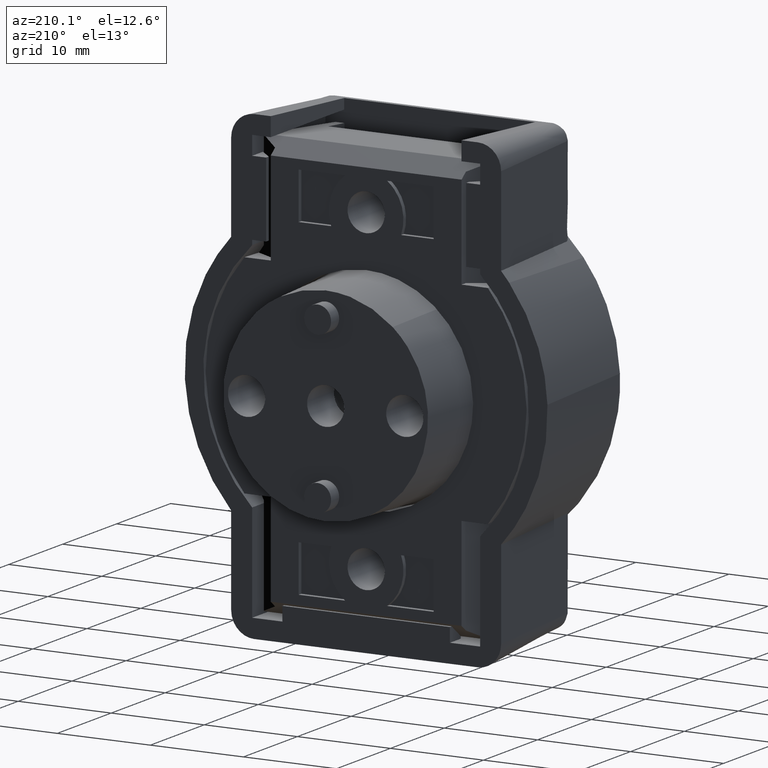
[diagram: clean part render]
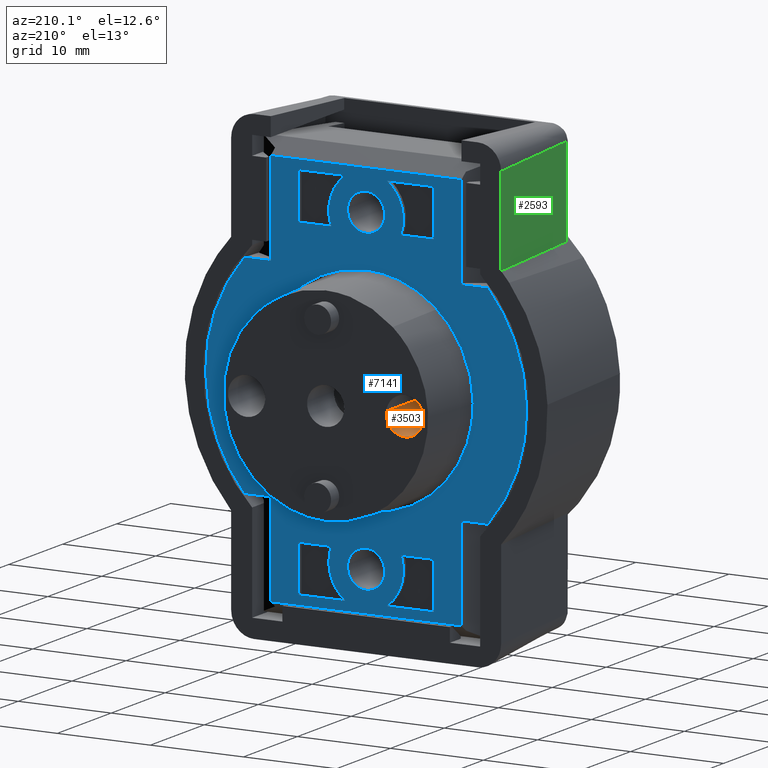
[diagram: same view with three faces highlighted in distinct colors, each labeled with its STEP entity id]
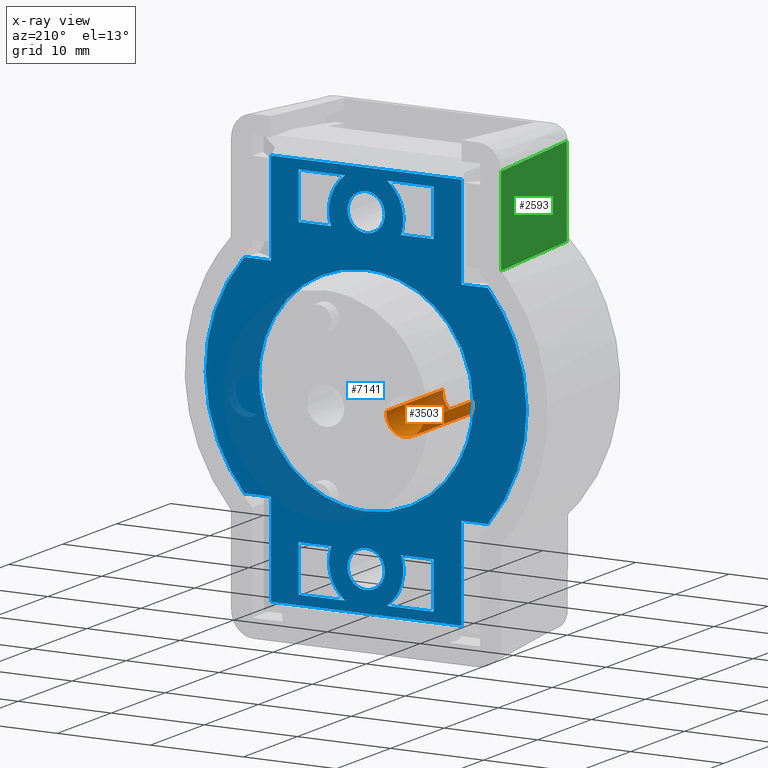
[diagram: x-ray of the same camera — body ghosted, the three highlighted faces saturated]
A machine part, auxiliary view with three faces highlighted in distinct colors.
The next image is the same camera in x-ray (body ghosted, the three faces saturated) — at least one of them is partly hidden behind the body in this view.
Their STEP definitions:

[orange] entity #3503 — the highlighted face is a freeform B-spline surface patch.
#3401=CARTESIAN_POINT('',(3.262500000000001,6.513980947272669,-0.236068469313518));
#3402=CARTESIAN_POINT('',(3.262500000000001,6.507224769102789,-0.179229457275957));
#3403=CARTESIAN_POINT('',(3.262500000000001,6.503730403156267,-0.122097079069715));
#3404=CARTESIAN_POINT('',(3.262500000000001,6.381633324086554,1.874172517774017));
#3405=CARTESIAN_POINT('',(3.262500000000001,8.377902920930286,1.996269596843732));
#3406=CARTESIAN_POINT('',(3.262500000000001,10.374172517774019,2.118366675913446));
#3407=CARTESIAN_POINT('',(3.262500000000001,10.496269596843730,0.122097079069712));
#3408=CARTESIAN_POINT('',(-7.769062500000002,6.513980947272669,-0.236068469313518));
#3409=CARTESIAN_POINT('',(-7.769062500000002,6.507224769102789,-0.179229457275957));
#3410=CARTESIAN_POINT('',(-7.769062500000001,6.503730403156267,-0.122097079069715));
#3411=CARTESIAN_POINT('',(-7.769062500000001,6.381633324086554,1.874172517774017));
#3412=CARTESIAN_POINT('',(-7.769062500000001,8.377902920930286,1.996269596843732));
#3413=CARTESIAN_POINT('',(-7.769062500000001,10.374172517774019,2.118366675913446));
#3414=CARTESIAN_POINT('',(-7.769062500000001,10.496269596843730,0.122097079069712));
#3422=(BOUNDED_SURFACE()B_SPLINE_SURFACE(2,1,((#3401,#3408),(#3402,#3409),(#3403,#3410),(#3404,#3411),(#3405,#3412),(#3406,#3413),(#3407,#3414)),.UNSPECIFIED.,.F.,.F.,.U.)B_SPLINE_SURFACE_WITH_KNOTS((3,2,2,3),(2,2),(0.0,0.132548339959391,3.446256838944152,6.759965337928914),(0.0,11.031562500000000),.UNSPECIFIED.)GEOMETRIC_REPRESENTATION_ITEM()RATIONAL_B_SPLINE_SURFACE(((0.977505800795127,0.977505800795127),(0.988284271247462,0.988284271247462),(1.0,1.0),(0.707106781186548,0.707106781186548),(1.0,1.0),(0.707106781186548,0.707106781186548),(1.0,1.0)))REPRESENTATION_ITEM('')SURFACE());
#3423=CARTESIAN_POINT('',(3.0,6.513980947274620,-0.236068469329939));
#3424=VERTEX_POINT('',#3423);
#3425=CARTESIAN_POINT('',(3.0,8.500000000000000,1.999999999999998));
#3426=VERTEX_POINT('',#3425);
#3427=CARTESIAN_POINT('',(3.0,6.513980947274621,-0.236068469329939));
#3428=CARTESIAN_POINT('',(3.0,6.500000000000001,-0.118448239320416));
#3429=CARTESIAN_POINT('',(3.0,6.500000000000001,-1.561373E-015));
#3430=CARTESIAN_POINT('',(3.0,6.500000000000003,1.999999999999998));
#3431=CARTESIAN_POINT('',(3.0,8.500000000000000,1.999999999999998));
#3439=(BOUNDED_CURVE()B_SPLINE_CURVE(2,(#3427,#3428,#3429,#3430,#3431),.UNSPECIFIED.,.F.,.U.)B_SPLINE_CURVE_WITH_KNOTS((3,2,3),(0.229562473512850,0.250000000000000,0.500000000000000),.UNSPECIFIED.)CURVE()GEOMETRIC_REPRESENTATION_ITEM()RATIONAL_B_SPLINE_CURVE((0.956026754182408,0.976055948330373,1.0,0.707106781186548,1.0))REPRESENTATION_ITEM(''));
#3440=EDGE_CURVE('',#3424,#3426,#3439,.T.);
#3441=ORIENTED_EDGE('',*,*,#3440,.F.);
#3442=CARTESIAN_POINT('',(-7.500000000000001,6.513980947274620,-0.236068469329939));
#3443=VERTEX_POINT('',#3442);
#3444=CARTESIAN_POINT('',(3.0,6.513980947274620,-0.236068469329939));
#3445=CARTESIAN_POINT('',(-7.500000000000001,6.513980947274620,-0.236068469329939));
#3446=QUASI_UNIFORM_CURVE('',1,(#3444,#3445),.UNSPECIFIED.,.F.,.U.);
#3447=EDGE_CURVE('',#3424,#3443,#3446,.T.);
#3448=ORIENTED_EDGE('',*,*,#3447,.T.);
#3449=CARTESIAN_POINT('',(-7.500000000000000,8.500000000000000,1.999999999999998));
#3450=VERTEX_POINT('',#3449);
#3451=CARTESIAN_POINT('',(-7.500000000000002,6.513980947274621,-0.236068469329939));
#3452=CARTESIAN_POINT('',(-7.500000000000000,6.500000000000001,-0.118448239320416));
#3453=CARTESIAN_POINT('',(-7.500000000000000,6.500000000000001,-1.561373E-015));
#3454=CARTESIAN_POINT('',(-7.500000000000000,6.500000000000003,1.999999999999998));
#3455=CARTESIAN_POINT('',(-7.500000000000000,8.500000000000000,1.999999999999998));
#3463=(BOUNDED_CURVE()B_SPLINE_CURVE(2,(#3451,#3452,#3453,#3454,#3455),.UNSPECIFIED.,.F.,.U.)B_SPLINE_CURVE_WITH_KNOTS((3,2,3),(0.229562473512850,0.250000000000000,0.500000000000000),.UNSPECIFIED.)CURVE()GEOMETRIC_REPRESENTATION_ITEM()RATIONAL_B_SPLINE_CURVE((0.956026754182408,0.976055948330373,1.0,0.707106781186548,1.0))REPRESENTATION_ITEM(''));
#3464=EDGE_CURVE('',#3443,#3450,#3463,.T.);
#3465=ORIENTED_EDGE('',*,*,#3464,.T.);
#3466=CARTESIAN_POINT('',(-7.500000000000000,10.496269596839889,0.122097079132595));
#3467=VERTEX_POINT('',#3466);
#3468=CARTESIAN_POINT('',(-7.500000000000000,8.500000000000000,1.999999999999998));
#3469=CARTESIAN_POINT('',(-7.499999999999999,10.381412133692640,1.999999999999998));
#3470=CARTESIAN_POINT('',(-7.500000000000000,10.496269596839886,0.122097079132595));
#3478=(BOUNDED_CURVE()B_SPLINE_CURVE(2,(#3468,#3469,#3470),.UNSPECIFIED.,.F.,.U.)B_SPLINE_CURVE_WITH_KNOTS((3,3),(0.500000000000000,0.739332962231098),.UNSPECIFIED.)CURVE()GEOMETRIC_REPRESENTATION_ITEM()RATIONAL_B_SPLINE_CURVE((1.0,0.719603993295901,0.976072041649905))REPRESENTATION_ITEM(''));
#3479=EDGE_CURVE('',#3450,#3467,#3478,.T.);
#3480=ORIENTED_EDGE('',*,*,#3479,.T.);
#3481=CARTESIAN_POINT('',(2.999999999999999,10.496269596839889,0.122097079132595));
#3482=VERTEX_POINT('',#3481);
#3483=CARTESIAN_POINT('',(2.999999999999999,10.496269596839889,0.122097079132595));
#3484=CARTESIAN_POINT('',(-7.500000000000000,10.496269596839889,0.122097079132595));
#3485=QUASI_UNIFORM_CURVE('',1,(#3483,#3484),.UNSPECIFIED.,.F.,.U.);
#3486=EDGE_CURVE('',#3482,#3467,#3485,.T.);
#3487=ORIENTED_EDGE('',*,*,#3486,.F.);
#3488=CARTESIAN_POINT('',(3.0,8.500000000000000,1.999999999999998));
#3489=CARTESIAN_POINT('',(3.000000000000001,10.381412133692640,1.999999999999998));
#3490=CARTESIAN_POINT('',(2.999999999999999,10.496269596839886,0.122097079132595));
#3498=(BOUNDED_CURVE()B_SPLINE_CURVE(2,(#3488,#3489,#3490),.UNSPECIFIED.,.F.,.U.)B_SPLINE_CURVE_WITH_KNOTS((3,3),(0.500000000000000,0.739332962231098),.UNSPECIFIED.)CURVE()GEOMETRIC_REPRESENTATION_ITEM()RATIONAL_B_SPLINE_CURVE((1.0,0.719603993295901,0.976072041649905))REPRESENTATION_ITEM(''));
#3499=EDGE_CURVE('',#3426,#3482,#3498,.T.);
#3500=ORIENTED_EDGE('',*,*,#3499,.F.);
#3501=EDGE_LOOP('',(#3441,#3448,#3465,#3480,#3487,#3500));
#3502=FACE_OUTER_BOUND('',#3501,.T.);
#3503=ADVANCED_FACE('',(#3502),#3422,.F.);

[blue] entity #7141 — the highlighted face is a freeform B-spline surface patch.
#4733=CARTESIAN_POINT('',(-2.839428E-017,-1.986019052725381,16.763931530670060));
#4734=VERTEX_POINT('',#4733);
#4740=CARTESIAN_POINT('',(0.0,0.0,19.0));
#4741=VERTEX_POINT('',#4740);
#4742=CARTESIAN_POINT('',(-2.839428E-017,-1.986019052725381,16.763931530670064));
#4743=CARTESIAN_POINT('',(0.0,-2.000000000000000,16.881551760679589));
#4744=CARTESIAN_POINT('',(0.0,-2.0,17.0));
#4745=CARTESIAN_POINT('',(0.0,-2.000000000000000,19.000000000000011));
#4746=CARTESIAN_POINT('',(0.0,0.0,19.0));
#4754=(BOUNDED_CURVE()B_SPLINE_CURVE(2,(#4742,#4743,#4744,#4745,#4746),.UNSPECIFIED.,.F.,.U.)B_SPLINE_CURVE_WITH_KNOTS((3,2,3),(0.229562473512849,0.250000000000000,0.500000000000000),.UNSPECIFIED.)CURVE()GEOMETRIC_REPRESENTATION_ITEM()RATIONAL_B_SPLINE_CURVE((0.956026754182407,0.976055948330373,1.0,0.707106781186548,1.0))REPRESENTATION_ITEM(''));
#4755=EDGE_CURVE('',#4734,#4741,#4754,.T.);
#4757=CARTESIAN_POINT('',(-5.551115E-017,1.996269596839888,17.122097079132590));
#4758=VERTEX_POINT('',#4757);
#4759=CARTESIAN_POINT('',(0.0,0.0,19.0));
#4760=CARTESIAN_POINT('',(0.0,1.881412133692641,19.0));
#4761=CARTESIAN_POINT('',(-5.551115E-017,1.996269596839887,17.122097079132590));
#4769=(BOUNDED_CURVE()B_SPLINE_CURVE(2,(#4759,#4760,#4761),.UNSPECIFIED.,.F.,.U.)B_SPLINE_CURVE_WITH_KNOTS((3,3),(0.500000000000000,0.739332962231098),.UNSPECIFIED.)CURVE()GEOMETRIC_REPRESENTATION_ITEM()RATIONAL_B_SPLINE_CURVE((1.0,0.719603993295901,0.976072041649905))REPRESENTATION_ITEM(''));
#4770=EDGE_CURVE('',#4741,#4758,#4769,.T.);
#4844=CARTESIAN_POINT('',(0.0,0.0,15.0));
#4845=VERTEX_POINT('',#4844);
#4846=CARTESIAN_POINT('',(-5.551115E-017,1.996269596839887,17.122097079132590));
#4847=CARTESIAN_POINT('',(0.0,2.0,17.061105526660235));
#4848=CARTESIAN_POINT('',(0.0,2.0,17.0));
#4849=CARTESIAN_POINT('',(0.0,2.000000000000000,15.000000000000009));
#4850=CARTESIAN_POINT('',(0.0,0.0,15.0));
#4858=(BOUNDED_CURVE()B_SPLINE_CURVE(2,(#4846,#4847,#4848,#4849,#4850),.UNSPECIFIED.,.F.,.U.)B_SPLINE_CURVE_WITH_KNOTS((3,2,3),(0.739332962231098,0.750000000000000,1.0),.UNSPECIFIED.)CURVE()GEOMETRIC_REPRESENTATION_ITEM()RATIONAL_B_SPLINE_CURVE((0.976072041649905,0.987502787890646,1.0,0.707106781186548,1.0))REPRESENTATION_ITEM(''));
#4859=EDGE_CURVE('',#4758,#4845,#4858,.T.);
#4861=CARTESIAN_POINT('',(0.0,0.0,15.0));
#4862=CARTESIAN_POINT('',(0.0,-1.776349051873152,15.0));
#4863=CARTESIAN_POINT('',(-2.839428E-017,-1.986019052725381,16.763931530670064));
#4871=(BOUNDED_CURVE()B_SPLINE_CURVE(2,(#4861,#4862,#4863),.UNSPECIFIED.,.F.,.U.)B_SPLINE_CURVE_WITH_KNOTS((3,3),(0.0,0.229562473512849),.UNSPECIFIED.)CURVE()GEOMETRIC_REPRESENTATION_ITEM()RATIONAL_B_SPLINE_CURVE((1.0,0.731050832856175,0.956026754182407))REPRESENTATION_ITEM(''));
#4872=EDGE_CURVE('',#4845,#4734,#4871,.T.);
#4919=CARTESIAN_POINT('',(-2.839428E-017,-1.986019052725381,-17.236068469329940));
#4920=VERTEX_POINT('',#4919);
#4926=CARTESIAN_POINT('',(0.0,0.0,-15.0));
#4927=VERTEX_POINT('',#4926);
#4928=CARTESIAN_POINT('',(-2.839428E-017,-1.986019052725381,-17.236068469329940));
#4929=CARTESIAN_POINT('',(0.0,-2.000000000000000,-17.118448239320415));
#4930=CARTESIAN_POINT('',(0.0,-2.0,-17.0));
#4931=CARTESIAN_POINT('',(0.0,-2.000000000000000,-15.000000000000009));
#4932=CARTESIAN_POINT('',(0.0,0.0,-15.0));
#4940=(BOUNDED_CURVE()B_SPLINE_CURVE(2,(#4928,#4929,#4930,#4931,#4932),.UNSPECIFIED.,.F.,.U.)B_SPLINE_CURVE_WITH_KNOTS((3,2,3),(0.229562473512850,0.250000000000000,0.500000000000000),.UNSPECIFIED.)CURVE()GEOMETRIC_REPRESENTATION_ITEM()RATIONAL_B_SPLINE_CURVE((0.956026754182408,0.976055948330373,1.0,0.707106781186548,1.0))REPRESENTATION_ITEM(''));
#4941=EDGE_CURVE('',#4920,#4927,#4940,.T.);
#4943=CARTESIAN_POINT('',(-5.551115E-017,1.996269596839888,-16.877902920867410));
#4944=VERTEX_POINT('',#4943);
#4945=CARTESIAN_POINT('',(0.0,0.0,-15.0));
#4946=CARTESIAN_POINT('',(0.0,1.881412133692641,-15.000000000000007));
#4947=CARTESIAN_POINT('',(-5.551115E-017,1.996269596839887,-16.877902920867410));
#4955=(BOUNDED_CURVE()B_SPLINE_CURVE(2,(#4945,#4946,#4947),.UNSPECIFIED.,.F.,.U.)B_SPLINE_CURVE_WITH_KNOTS((3,3),(0.500000000000000,0.739332962231098),.UNSPECIFIED.)CURVE()GEOMETRIC_REPRESENTATION_ITEM()RATIONAL_B_SPLINE_CURVE((1.0,0.719603993295901,0.976072041649905))REPRESENTATION_ITEM(''));
#4956=EDGE_CURVE('',#4927,#4944,#4955,.T.);
#5030=CARTESIAN_POINT('',(0.0,0.0,-19.0));
#5031=VERTEX_POINT('',#5030);
#5032=CARTESIAN_POINT('',(-5.551115E-017,1.996269596839888,-16.877902920867410));
#5033=CARTESIAN_POINT('',(0.0,2.000000000000000,-16.938894473339769));
#5034=CARTESIAN_POINT('',(0.0,2.0,-17.0));
#5035=CARTESIAN_POINT('',(0.0,2.000000000000000,-19.000000000000011));
#5036=CARTESIAN_POINT('',(0.0,0.0,-19.0));
#5044=(BOUNDED_CURVE()B_SPLINE_CURVE(2,(#5032,#5033,#5034,#5035,#5036),.UNSPECIFIED.,.F.,.U.)B_SPLINE_CURVE_WITH_KNOTS((3,2,3),(0.739332962231098,0.750000000000000,1.0),.UNSPECIFIED.)CURVE()GEOMETRIC_REPRESENTATION_ITEM()RATIONAL_B_SPLINE_CURVE((0.976072041649904,0.987502787890646,1.0,0.707106781186548,1.0))REPRESENTATION_ITEM(''));
#5045=EDGE_CURVE('',#4944,#5031,#5044,.T.);
#5047=CARTESIAN_POINT('',(0.0,0.0,-19.0));
#5048=CARTESIAN_POINT('',(0.0,-1.776349051873156,-19.000000000000004));
#5049=CARTESIAN_POINT('',(-2.839428E-017,-1.986019052725381,-17.236068469329936));
#5057=(BOUNDED_CURVE()B_SPLINE_CURVE(2,(#5047,#5048,#5049),.UNSPECIFIED.,.F.,.U.)B_SPLINE_CURVE_WITH_KNOTS((3,3),(0.0,0.229562473512850),.UNSPECIFIED.)CURVE()GEOMETRIC_REPRESENTATION_ITEM()RATIONAL_B_SPLINE_CURVE((1.0,0.731050832856174,0.956026754182408))REPRESENTATION_ITEM(''));
#5058=EDGE_CURVE('',#5031,#4920,#5057,.T.);
#5343=CARTESIAN_POINT('',(9.426996E-017,-11.411061914072411,1.427468386057175));
#5344=VERTEX_POINT('',#5343);
#5350=CARTESIAN_POINT('',(0.0,0.0,11.500000000000000));
#5351=VERTEX_POINT('',#5350);
#5352=CARTESIAN_POINT('',(9.426996E-017,-11.411061914072411,1.427468386057175));
#5353=CARTESIAN_POINT('',(0.0,-10.151037163113294,11.499999999999998));
#5354=CARTESIAN_POINT('',(0.0,0.0,11.500000000000000));
#5362=(BOUNDED_CURVE()B_SPLINE_CURVE(2,(#5352,#5353,#5354),.UNSPECIFIED.,.F.,.U.)B_SPLINE_CURVE_WITH_KNOTS((3,3),(0.271473875206165,0.500000000000000),.UNSPECIFIED.)CURVE()GEOMETRIC_REPRESENTATION_ITEM()RATIONAL_B_SPLINE_CURVE((0.954005534610925,0.732264990904676,1.0))REPRESENTATION_ITEM(''));
#5363=EDGE_CURVE('',#5344,#5351,#5362,.T.);
#5365=CARTESIAN_POINT('',(2.706169E-016,11.499562160729299,-0.100349945170653));
#5366=VERTEX_POINT('',#5365);
#5367=CARTESIAN_POINT('',(0.0,0.0,11.500000000000000));
#5368=CARTESIAN_POINT('',(0.0,11.500000000000000,11.500000000000000));
#5369=CARTESIAN_POINT('',(0.0,11.500000000000000,0.0));
#5370=CARTESIAN_POINT('',(0.0,11.500000000000002,-0.050175927758877));
#5371=CARTESIAN_POINT('',(2.706169E-016,11.499562160729301,-0.100349945170653));
#5379=(BOUNDED_CURVE()B_SPLINE_CURVE(2,(#5367,#5368,#5369,#5370,#5371),.UNSPECIFIED.,.F.,.U.)B_SPLINE_CURVE_WITH_KNOTS((3,2,3),(0.500000000000000,0.750000000000000,0.751539814484723),.UNSPECIFIED.)CURVE()GEOMETRIC_REPRESENTATION_ITEM()RATIONAL_B_SPLINE_CURVE((1.0,0.707106781186548,1.0,0.998195995116775,0.996414212896349))REPRESENTATION_ITEM(''));
#5380=EDGE_CURVE('',#5351,#5366,#5379,.T.);
#5460=CARTESIAN_POINT('',(0.0,0.0,-11.500000000000000));
#5461=VERTEX_POINT('',#5460);
#5462=CARTESIAN_POINT('',(2.706169E-016,11.499562160729301,-0.100349945170653));
#5463=CARTESIAN_POINT('',(0.0,11.400084090002419,-11.499999999999998));
#5464=CARTESIAN_POINT('',(0.0,0.0,-11.500000000000000));
#5472=(BOUNDED_CURVE()B_SPLINE_CURVE(2,(#5462,#5463,#5464),.UNSPECIFIED.,.F.,.U.)B_SPLINE_CURVE_WITH_KNOTS((3,3),(0.751539814484723,1.0),.UNSPECIFIED.)CURVE()GEOMETRIC_REPRESENTATION_ITEM()RATIONAL_B_SPLINE_CURVE((0.996414212896349,0.708910786069772,1.0))REPRESENTATION_ITEM(''));
#5473=EDGE_CURVE('',#5366,#5461,#5472,.T.);
#5475=CARTESIAN_POINT('',(0.0,0.0,-11.500000000000000));
#5476=CARTESIAN_POINT('',(0.0,-11.500000000000000,-11.500000000000000));
#5477=CARTESIAN_POINT('',(0.0,-11.500000000000000,0.0));
#5478=CARTESIAN_POINT('',(0.0,-11.500000000000005,0.716504826412039));
#5479=CARTESIAN_POINT('',(9.426996E-017,-11.411061914072411,1.427468386057175));
#5487=(BOUNDED_CURVE()B_SPLINE_CURVE(2,(#5475,#5476,#5477,#5478,#5479),.UNSPECIFIED.,.F.,.U.)B_SPLINE_CURVE_WITH_KNOTS((3,2,3),(0.0,0.250000000000000,0.271473875206165),.UNSPECIFIED.)CURVE()GEOMETRIC_REPRESENTATION_ITEM()RATIONAL_B_SPLINE_CURVE((1.0,0.707106781186548,1.0,0.974841790281872,0.954005534610925))REPRESENTATION_ITEM(''));
#5488=EDGE_CURVE('',#5461,#5344,#5487,.T.);
#5552=CARTESIAN_POINT('',(0.0,2.250166658038225,20.250000000000000));
#5553=VERTEX_POINT('',#5552);
#5554=CARTESIAN_POINT('',(0.0,3.749949120520540,15.250000000000000));
#5555=VERTEX_POINT('',#5554);
#5556=CARTESIAN_POINT('',(0.0,2.250166658038220,20.250000000000000));
#5557=CARTESIAN_POINT('',(0.0,4.845262690561836,18.303481160130321));
#5558=CARTESIAN_POINT('',(0.0,3.749949120520540,15.250000000000000));
#5566=(BOUNDED_CURVE()B_SPLINE_CURVE(2,(#5556,#5557,#5558),.UNSPECIFIED.,.F.,.U.)CURVE()GEOMETRIC_REPRESENTATION_ITEM()QUASI_UNIFORM_CURVE()RATIONAL_B_SPLINE_CURVE((1.0,0.804579199186941,1.0))REPRESENTATION_ITEM(''));
#5567=EDGE_CURVE('',#5553,#5555,#5566,.T.);
#5588=CARTESIAN_POINT('',(0.0,7.250000000000000,15.250000000000000));
#5589=VERTEX_POINT('',#5588);
#5590=CARTESIAN_POINT('',(0.0,7.250000000000000,15.250000000000000));
#5591=CARTESIAN_POINT('',(0.0,3.749949120520540,15.250000000000000));
#5592=QUASI_UNIFORM_CURVE('',1,(#5590,#5591),.UNSPECIFIED.,.F.,.U.);
#5593=EDGE_CURVE('',#5589,#5555,#5592,.T.);
#5610=CARTESIAN_POINT('',(0.0,7.250000000000000,20.250000000000000));
#5611=VERTEX_POINT('',#5610);
#5612=CARTESIAN_POINT('',(0.0,7.250000000000000,20.250000000000000));
#5613=CARTESIAN_POINT('',(0.0,7.250000000000000,15.250000000000000));
#5614=QUASI_UNIFORM_CURVE('',1,(#5612,#5613),.UNSPECIFIED.,.F.,.U.);
#5615=EDGE_CURVE('',#5611,#5589,#5614,.T.);
#5632=CARTESIAN_POINT('',(0.0,2.250166658038225,20.250000000000000));
#5633=CARTESIAN_POINT('',(0.0,7.250000000000000,20.250000000000000));
#5634=QUASI_UNIFORM_CURVE('',1,(#5632,#5633),.UNSPECIFIED.,.F.,.U.);
#5635=EDGE_CURVE('',#5553,#5611,#5634,.T.);
#5692=CARTESIAN_POINT('',(0.0,-7.250000000000000,15.250000000000000));
#5693=VERTEX_POINT('',#5692);
#5694=CARTESIAN_POINT('',(0.0,-3.749949120520530,15.250000000000000));
#5695=VERTEX_POINT('',#5694);
#5696=CARTESIAN_POINT('',(0.0,-7.250000000000000,15.250000000000000));
#5697=CARTESIAN_POINT('',(0.0,-3.749949120520530,15.250000000000000));
#5698=QUASI_UNIFORM_CURVE('',1,(#5696,#5697),.UNSPECIFIED.,.F.,.U.);
#5699=EDGE_CURVE('',#5693,#5695,#5698,.T.);
#5720=CARTESIAN_POINT('',(0.0,-7.250000000000000,20.250000000000000));
#5721=VERTEX_POINT('',#5720);
#5722=CARTESIAN_POINT('',(0.0,-7.250000000000000,20.250000000000000));
#5723=CARTESIAN_POINT('',(0.0,-7.250000000000000,15.250000000000000));
#5724=QUASI_UNIFORM_CURVE('',1,(#5722,#5723),.UNSPECIFIED.,.F.,.U.);
#5725=EDGE_CURVE('',#5721,#5693,#5724,.T.);
#5742=CARTESIAN_POINT('',(0.0,-2.250166658038210,20.250000000000000));
#5743=VERTEX_POINT('',#5742);
#5744=CARTESIAN_POINT('',(0.0,-2.250166658038210,20.250000000000000));
#5745=CARTESIAN_POINT('',(0.0,-7.250000000000000,20.250000000000000));
#5746=QUASI_UNIFORM_CURVE('',1,(#5744,#5745),.UNSPECIFIED.,.F.,.U.);
#5747=EDGE_CURVE('',#5743,#5721,#5746,.T.);
#5773=CARTESIAN_POINT('',(0.0,-3.749949120520530,15.250000000000000));
#5774=CARTESIAN_POINT('',(0.0,-4.845262690561829,18.303481160130318));
#5775=CARTESIAN_POINT('',(0.0,-2.250166658038207,20.250000000000000));
#5783=(BOUNDED_CURVE()B_SPLINE_CURVE(2,(#5773,#5774,#5775),.UNSPECIFIED.,.F.,.U.)CURVE()GEOMETRIC_REPRESENTATION_ITEM()QUASI_UNIFORM_CURVE()RATIONAL_B_SPLINE_CURVE((1.0,0.804579199186941,1.0))REPRESENTATION_ITEM(''));
#5784=EDGE_CURVE('',#5695,#5743,#5783,.T.);
#5841=CARTESIAN_POINT('',(0.0,2.250166658038335,-20.250000000000000));
#5842=VERTEX_POINT('',#5841);
#5843=CARTESIAN_POINT('',(0.0,7.250000000000000,-20.250000000000000));
#5844=VERTEX_POINT('',#5843);
#5845=CARTESIAN_POINT('',(0.0,2.250166658038335,-20.250000000000000));
#5846=CARTESIAN_POINT('',(0.0,7.250000000000000,-20.250000000000000));
#5847=QUASI_UNIFORM_CURVE('',1,(#5845,#5846),.UNSPECIFIED.,.F.,.U.);
#5848=EDGE_CURVE('',#5842,#5844,#5847,.T.);
#5878=CARTESIAN_POINT('',(0.0,3.749949120520580,-15.250000000000000));
#5879=VERTEX_POINT('',#5878);
#5880=CARTESIAN_POINT('',(0.0,3.749949120520578,-15.250000000000000));
#5881=CARTESIAN_POINT('',(0.0,4.845262690561806,-18.303481160130264));
#5882=CARTESIAN_POINT('',(0.0,2.250166658038291,-20.249999999999940));
#5890=(BOUNDED_CURVE()B_SPLINE_CURVE(2,(#5880,#5881,#5882),.UNSPECIFIED.,.F.,.U.)CURVE()GEOMETRIC_REPRESENTATION_ITEM()QUASI_UNIFORM_CURVE()RATIONAL_B_SPLINE_CURVE((1.0,0.804579199186948,1.0))REPRESENTATION_ITEM(''));
#5891=EDGE_CURVE('',#5879,#5842,#5890,.T.);
#5908=CARTESIAN_POINT('',(0.0,7.250000000000000,-15.250000000000000));
#5909=VERTEX_POINT('',#5908);
#5910=CARTESIAN_POINT('',(0.0,7.250000000000000,-15.250000000000000));
#5911=CARTESIAN_POINT('',(0.0,3.749949120520580,-15.250000000000000));
#5912=QUASI_UNIFORM_CURVE('',1,(#5910,#5911),.UNSPECIFIED.,.F.,.U.);
#5913=EDGE_CURVE('',#5909,#5879,#5912,.T.);
#5930=CARTESIAN_POINT('',(0.0,7.250000000000000,-20.250000000000000));
#5931=CARTESIAN_POINT('',(0.0,7.250000000000000,-15.250000000000000));
#5932=QUASI_UNIFORM_CURVE('',1,(#5930,#5931),.UNSPECIFIED.,.F.,.U.);
#5933=EDGE_CURVE('',#5844,#5909,#5932,.T.);
#5990=CARTESIAN_POINT('',(0.0,-2.250166658038320,-20.250000000000000));
#5991=VERTEX_POINT('',#5990);
#5992=CARTESIAN_POINT('',(0.0,-7.250000000000000,-20.250000000000000));
#5993=VERTEX_POINT('',#5992);
#5994=CARTESIAN_POINT('',(0.0,-2.250166658038320,-20.250000000000000));
#5995=CARTESIAN_POINT('',(0.0,-7.250000000000000,-20.250000000000000));
#5996=QUASI_UNIFORM_CURVE('',1,(#5994,#5995),.UNSPECIFIED.,.F.,.U.);
#5997=EDGE_CURVE('',#5991,#5993,#5996,.T.);
#6027=CARTESIAN_POINT('',(0.0,-3.749949120520565,-15.250000000000000));
#6028=VERTEX_POINT('',#6027);
#6029=CARTESIAN_POINT('',(0.0,-2.250166658038277,-20.249999999999950));
#6030=CARTESIAN_POINT('',(0.0,-4.845262690561799,-18.303481160130271));
#6031=CARTESIAN_POINT('',(0.0,-3.749949120520567,-15.250000000000000));
#6039=(BOUNDED_CURVE()B_SPLINE_CURVE(2,(#6029,#6030,#6031),.UNSPECIFIED.,.F.,.U.)CURVE()GEOMETRIC_REPRESENTATION_ITEM()QUASI_UNIFORM_CURVE()RATIONAL_B_SPLINE_CURVE((1.0,0.804579199186947,1.0))REPRESENTATION_ITEM(''));
#6040=EDGE_CURVE('',#5991,#6028,#6039,.T.);
#6057=CARTESIAN_POINT('',(0.0,-7.250000000000000,-15.250000000000000));
#6058=VERTEX_POINT('',#6057);
#6059=CARTESIAN_POINT('',(0.0,-7.250000000000000,-15.250000000000000));
#6060=CARTESIAN_POINT('',(0.0,-3.749949120520565,-15.250000000000000));
#6061=QUASI_UNIFORM_CURVE('',1,(#6059,#6060),.UNSPECIFIED.,.F.,.U.);
#6062=EDGE_CURVE('',#6058,#6028,#6061,.T.);
#6079=CARTESIAN_POINT('',(0.0,-7.250000000000000,-20.250000000000000));
#6080=CARTESIAN_POINT('',(0.0,-7.250000000000000,-15.250000000000000));
#6081=QUASI_UNIFORM_CURVE('',1,(#6079,#6080),.UNSPECIFIED.,.F.,.U.);
#6082=EDGE_CURVE('',#5993,#6058,#6081,.T.);
#6104=CARTESIAN_POINT('',(0.0,-10.250000000000000,11.250000000000000));
#6105=VERTEX_POINT('',#6104);
#6111=CARTESIAN_POINT('',(0.0,-13.076696830622000,11.250000000000000));
#6112=VERTEX_POINT('',#6111);
#6113=CARTESIAN_POINT('',(0.0,-13.076696830622000,11.250000000000000));
#6114=CARTESIAN_POINT('',(0.0,-10.250000000000000,11.250000000000000));
#6115=QUASI_UNIFORM_CURVE('',1,(#6113,#6114),.UNSPECIFIED.,.F.,.U.);
#6116=EDGE_CURVE('',#6112,#6105,#6115,.T.);
#6176=CARTESIAN_POINT('',(-1.092876E-013,-10.250000000000000,21.249999999999702));
#6177=VERTEX_POINT('',#6176);
#6183=CARTESIAN_POINT('',(0.0,-10.250000000000000,11.250000000000000));
#6184=CARTESIAN_POINT('',(-1.092876E-013,-10.250000000000000,21.249999999999702));
#6185=QUASI_UNIFORM_CURVE('',1,(#6183,#6184),.UNSPECIFIED.,.F.,.U.);
#6186=EDGE_CURVE('',#6105,#6177,#6185,.T.);
#6200=CARTESIAN_POINT('',(0.0,13.076696830622041,11.250000000000000));
#6201=VERTEX_POINT('',#6200);
#6209=CARTESIAN_POINT('',(0.0,10.250000000000000,11.250000000000000));
#6210=VERTEX_POINT('',#6209);
#6211=CARTESIAN_POINT('',(0.0,10.250000000000000,11.250000000000000));
#6212=CARTESIAN_POINT('',(0.0,13.076696830622041,11.250000000000000));
#6213=QUASI_UNIFORM_CURVE('',1,(#6211,#6212),.UNSPECIFIED.,.F.,.U.);
#6214=EDGE_CURVE('',#6210,#6201,#6213,.T.);
#6236=CARTESIAN_POINT('',(0.0,10.250000000000000,21.250000000000000));
#6237=VERTEX_POINT('',#6236);
#6251=CARTESIAN_POINT('',(0.0,10.250000000000000,11.250000000000000));
#6252=CARTESIAN_POINT('',(0.0,10.250000000000000,21.250000000000000));
#6253=QUASI_UNIFORM_CURVE('',1,(#6251,#6252),.UNSPECIFIED.,.F.,.U.);
#6254=EDGE_CURVE('',#6210,#6237,#6253,.T.);
#6324=CARTESIAN_POINT('',(0.0,-10.250000000000000,-21.250000000000000));
#6325=VERTEX_POINT('',#6324);
#6331=CARTESIAN_POINT('',(0.0,10.250000000000000,-21.250000000000000));
#6332=VERTEX_POINT('',#6331);
#6333=CARTESIAN_POINT('',(0.0,10.250000000000000,-21.250000000000000));
#6334=CARTESIAN_POINT('',(0.0,-10.250000000000000,-21.250000000000000));
#6335=QUASI_UNIFORM_CURVE('',1,(#6333,#6334),.UNSPECIFIED.,.F.,.U.);
#6336=EDGE_CURVE('',#6332,#6325,#6335,.T.);
#6500=CARTESIAN_POINT('',(0.0,10.250000000000000,21.250000000000000));
#6501=CARTESIAN_POINT('',(-1.092876E-013,-10.250000000000000,21.249999999999702));
#6502=QUASI_UNIFORM_CURVE('',1,(#6500,#6501),.UNSPECIFIED.,.F.,.U.);
#6503=EDGE_CURVE('',#6237,#6177,#6502,.T.);
#6513=CARTESIAN_POINT('',(0.0,-13.076696830622000,-11.250000000000000));
#6514=VERTEX_POINT('',#6513);
#6515=CARTESIAN_POINT('',(0.0,-10.250000000000000,-11.250000000000000));
#6516=VERTEX_POINT('',#6515);
#6517=CARTESIAN_POINT('',(0.0,-13.076696830622000,-11.250000000000000));
#6518=CARTESIAN_POINT('',(0.0,-10.250000000000000,-11.250000000000000));
#6519=QUASI_UNIFORM_CURVE('',1,(#6517,#6518),.UNSPECIFIED.,.F.,.U.);
#6520=EDGE_CURVE('',#6514,#6516,#6519,.T.);
#6551=CARTESIAN_POINT('',(0.0,13.076696830622041,-11.250000000000000));
#6552=VERTEX_POINT('',#6551);
#6569=CARTESIAN_POINT('',(0.0,10.250000000000000,-11.250000000000000));
#6570=VERTEX_POINT('',#6569);
#6576=CARTESIAN_POINT('',(0.0,10.250000000000000,-11.250000000000000));
#6577=CARTESIAN_POINT('',(0.0,13.076696830622041,-11.250000000000000));
#6578=QUASI_UNIFORM_CURVE('',1,(#6576,#6577),.UNSPECIFIED.,.F.,.U.);
#6579=EDGE_CURVE('',#6570,#6552,#6578,.T.);
#6618=CARTESIAN_POINT('',(0.0,-13.076696830622019,-11.250000000000011));
#6619=CARTESIAN_POINT('',(0.0,-22.755173103286360,1.040834E-014));
#6620=CARTESIAN_POINT('',(0.0,-13.076696830622010,11.250000000000020));
#6628=(BOUNDED_CURVE()B_SPLINE_CURVE(2,(#6618,#6619,#6620),.UNSPECIFIED.,.F.,.U.)CURVE()GEOMETRIC_REPRESENTATION_ITEM()QUASI_UNIFORM_CURVE()RATIONAL_B_SPLINE_CURVE((1.0,0.758069381485334,1.0))REPRESENTATION_ITEM(''));
#6629=EDGE_CURVE('',#6514,#6112,#6628,.T.);
#6771=CARTESIAN_POINT('',(0.0,13.076696830622030,11.250000000000000));
#6772=CARTESIAN_POINT('',(0.0,22.755173103286335,6.938894E-015));
#6773=CARTESIAN_POINT('',(0.0,13.076696830622030,-11.249999999999989));
#6781=(BOUNDED_CURVE()B_SPLINE_CURVE(2,(#6771,#6772,#6773),.UNSPECIFIED.,.F.,.U.)CURVE()GEOMETRIC_REPRESENTATION_ITEM()QUASI_UNIFORM_CURVE()RATIONAL_B_SPLINE_CURVE((1.0,0.758069381485335,1.0))REPRESENTATION_ITEM(''));
#6782=EDGE_CURVE('',#6201,#6552,#6781,.T.);
#6893=CARTESIAN_POINT('',(0.0,-10.250000000000000,-11.250000000000000));
#6894=CARTESIAN_POINT('',(0.0,-10.250000000000000,-21.250000000000000));
#6895=QUASI_UNIFORM_CURVE('',1,(#6893,#6894),.UNSPECIFIED.,.F.,.U.);
#6896=EDGE_CURVE('',#6516,#6325,#6895,.T.);
#6924=CARTESIAN_POINT('',(0.0,10.250000000000000,-11.250000000000000));
#6925=CARTESIAN_POINT('',(0.0,10.250000000000000,-21.250000000000000));
#6926=QUASI_UNIFORM_CURVE('',1,(#6924,#6925),.UNSPECIFIED.,.F.,.U.);
#6927=EDGE_CURVE('',#6570,#6332,#6926,.T.);
#7080=CARTESIAN_POINT('',(0.0,18.973274933132281,23.372874917626749));
#7081=CARTESIAN_POINT('',(0.0,-18.973275858494389,23.372874917626749));
#7082=CARTESIAN_POINT('',(0.0,18.973274933132281,-23.372876057565581));
#7083=CARTESIAN_POINT('',(0.0,-18.973275858494389,-23.372876057565581));
#7084=B_SPLINE_SURFACE_WITH_KNOTS('',1,1,((#7080,#7082),(#7081,#7083)),.UNSPECIFIED.,.F.,.F.,.U.,(2,2),(2,2),(0.0,37.946550791626670),(0.0,46.745750975192337),.UNSPECIFIED.);
#7085=ORIENTED_EDGE('',*,*,#6186,.T.);
#7086=ORIENTED_EDGE('',*,*,#6503,.F.);
#7087=ORIENTED_EDGE('',*,*,#6254,.F.);
#7088=ORIENTED_EDGE('',*,*,#6214,.T.);
#7089=ORIENTED_EDGE('',*,*,#6782,.T.);
#7090=ORIENTED_EDGE('',*,*,#6579,.F.);
#7091=ORIENTED_EDGE('',*,*,#6927,.T.);
#7092=ORIENTED_EDGE('',*,*,#6336,.T.);
#7093=ORIENTED_EDGE('',*,*,#6896,.F.);
#7094=ORIENTED_EDGE('',*,*,#6520,.F.);
#7095=ORIENTED_EDGE('',*,*,#6629,.T.);
#7096=ORIENTED_EDGE('',*,*,#6116,.T.);
#7097=EDGE_LOOP('',(#7085,#7086,#7087,#7088,#7089,#7090,#7091,#7092,#7093,#7094,#7095,#7096));
#7098=FACE_OUTER_BOUND('',#7097,.T.);
#7099=ORIENTED_EDGE('',*,*,#5848,.T.);
#7100=ORIENTED_EDGE('',*,*,#5933,.T.);
#7101=ORIENTED_EDGE('',*,*,#5913,.T.);
#7102=ORIENTED_EDGE('',*,*,#5891,.T.);
#7103=EDGE_LOOP('',(#7099,#7100,#7101,#7102));
#7104=FACE_BOUND('',#7103,.T.);
#7105=ORIENTED_EDGE('',*,*,#6082,.F.);
#7106=ORIENTED_EDGE('',*,*,#5997,.F.);
#7107=ORIENTED_EDGE('',*,*,#6040,.T.);
#7108=ORIENTED_EDGE('',*,*,#6062,.F.);
#7109=EDGE_LOOP('',(#7105,#7106,#7107,#7108));
#7110=FACE_BOUND('',#7109,.T.);
#7111=ORIENTED_EDGE('',*,*,#5635,.F.);
#7112=ORIENTED_EDGE('',*,*,#5567,.T.);
#7113=ORIENTED_EDGE('',*,*,#5593,.F.);
#7114=ORIENTED_EDGE('',*,*,#5615,.F.);
#7115=EDGE_LOOP('',(#7111,#7112,#7113,#7114));
#7116=FACE_BOUND('',#7115,.T.);
#7117=ORIENTED_EDGE('',*,*,#5699,.T.);
#7118=ORIENTED_EDGE('',*,*,#5784,.T.);
#7119=ORIENTED_EDGE('',*,*,#5747,.T.);
#7120=ORIENTED_EDGE('',*,*,#5725,.T.);
#7121=EDGE_LOOP('',(#7117,#7118,#7119,#7120));
#7122=FACE_BOUND('',#7121,.T.);
#7123=ORIENTED_EDGE('',*,*,#5380,.F.);
#7124=ORIENTED_EDGE('',*,*,#5363,.F.);
#7125=ORIENTED_EDGE('',*,*,#5488,.F.);
#7126=ORIENTED_EDGE('',*,*,#5473,.F.);
#7127=EDGE_LOOP('',(#7123,#7124,#7125,#7126));
#7128=FACE_BOUND('',#7127,.T.);
#7129=ORIENTED_EDGE('',*,*,#4956,.F.);
#7130=ORIENTED_EDGE('',*,*,#4941,.F.);
#7131=ORIENTED_EDGE('',*,*,#5058,.F.);
#7132=ORIENTED_EDGE('',*,*,#5045,.F.);
#7133=EDGE_LOOP('',(#7129,#7130,#7131,#7132));
#7134=FACE_BOUND('',#7133,.T.);
#7135=ORIENTED_EDGE('',*,*,#4770,.F.);
#7136=ORIENTED_EDGE('',*,*,#4755,.F.);
#7137=ORIENTED_EDGE('',*,*,#4872,.F.);
#7138=ORIENTED_EDGE('',*,*,#4859,.F.);
#7139=EDGE_LOOP('',(#7135,#7136,#7137,#7138));
#7140=FACE_BOUND('',#7139,.T.);
#7141=ADVANCED_FACE('',(#7098,#7104,#7110,#7116,#7122,#7128,#7134,#7140),#7084,.F.);

[green] entity #2593 — the highlighted face is a freeform B-spline surface patch.
#674=CARTESIAN_POINT('',(14.182498803140140,13.325958708582240,-12.962989763626579));
#675=VERTEX_POINT('',#674);
#701=CARTESIAN_POINT('',(-1.775679E-015,14.500000000000000,-13.038404810405300));
#702=VERTEX_POINT('',#701);
#703=CARTESIAN_POINT('',(14.182498803140140,13.325958708582240,-12.962989763626579));
#704=CARTESIAN_POINT('',(7.111817025478668,13.911276746022287,-13.011309167238229));
#705=CARTESIAN_POINT('',(-1.775679E-015,14.500000000000000,-13.038404810405300));
#713=(BOUNDED_CURVE()B_SPLINE_CURVE(2,(#703,#704,#705),.UNSPECIFIED.,.F.,.U.)CURVE()GEOMETRIC_REPRESENTATION_ITEM()QUASI_UNIFORM_CURVE()RATIONAL_B_SPLINE_CURVE((1.0,0.999592122333602,1.0))REPRESENTATION_ITEM(''));
#714=EDGE_CURVE('',#675,#702,#713,.T.);
#1073=CARTESIAN_POINT('',(14.182498803140160,13.325958708582240,-22.504391323943452));
#1074=VERTEX_POINT('',#1073);
#1177=CARTESIAN_POINT('',(14.182498803140140,13.325958708582240,-12.962989763626579));
#1178=CARTESIAN_POINT('',(14.182498803140160,13.325958708582240,-22.504391323943452));
#1179=QUASI_UNIFORM_CURVE('',1,(#1177,#1178),.UNSPECIFIED.,.F.,.U.);
#1180=EDGE_CURVE('',#675,#1074,#1179,.T.);
#1806=CARTESIAN_POINT('',(-1.775679E-015,14.500000000000000,-22.518819859114750));
#1807=VERTEX_POINT('',#1806);
#1808=CARTESIAN_POINT('',(14.182498803140181,13.325958708582240,-22.504391323943459));
#1809=CARTESIAN_POINT('',(9.454999202093445,13.717305805721489,-22.509200835667230));
#1810=CARTESIAN_POINT('',(4.727499601046723,14.108652902860751,-22.514010347391011));
#1811=CARTESIAN_POINT('',(-1.619527E-015,14.499999999999989,-22.518819859114799));
#1812=B_SPLINE_CURVE_WITH_KNOTS('',3,(#1808,#1809,#1810,#1811),.UNSPECIFIED.,.F.,.U.,(4,4),(0.446816152680502,0.652971740684981),.UNSPECIFIED.);
#1813=EDGE_CURVE('',#1074,#1807,#1812,.T.);
#2578=CARTESIAN_POINT('',(-0.708415787728418,14.558643360230800,-22.996133553863331));
#2579=CARTESIAN_POINT('',(14.890914971272840,13.267315316861200,-22.996133553863331));
#2580=CARTESIAN_POINT('',(-0.708415787728418,14.558643360230800,-12.485675812570660));
#2581=CARTESIAN_POINT('',(14.890914971272840,13.267315316861200,-12.485675812570660));
#2582=B_SPLINE_SURFACE_WITH_KNOTS('',1,1,((#2578,#2580),(#2579,#2581)),.UNSPECIFIED.,.F.,.F.,.U.,(2,2),(2,2),(0.0,15.652688211432420),(0.0,10.510457741292671),.UNSPECIFIED.);
#2583=ORIENTED_EDGE('',*,*,#714,.F.);
#2584=ORIENTED_EDGE('',*,*,#1180,.T.);
#2585=ORIENTED_EDGE('',*,*,#1813,.T.);
#2586=CARTESIAN_POINT('',(-1.775679E-015,14.500000000000000,-22.518819859114750));
#2587=CARTESIAN_POINT('',(-1.775679E-015,14.500000000000000,-13.038404810405300));
#2588=QUASI_UNIFORM_CURVE('',1,(#2586,#2587),.UNSPECIFIED.,.F.,.U.);
#2589=EDGE_CURVE('',#1807,#702,#2588,.T.);
#2590=ORIENTED_EDGE('',*,*,#2589,.T.);
#2591=EDGE_LOOP('',(#2583,#2584,#2585,#2590));
#2592=FACE_OUTER_BOUND('',#2591,.T.);
#2593=ADVANCED_FACE('',(#2592),#2582,.F.);